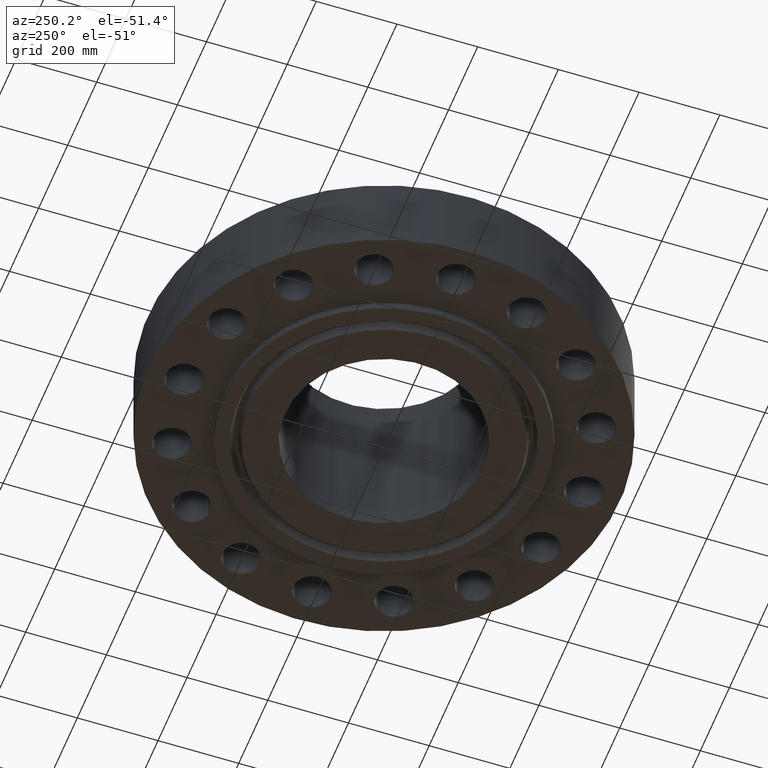
[diagram: clean part render]
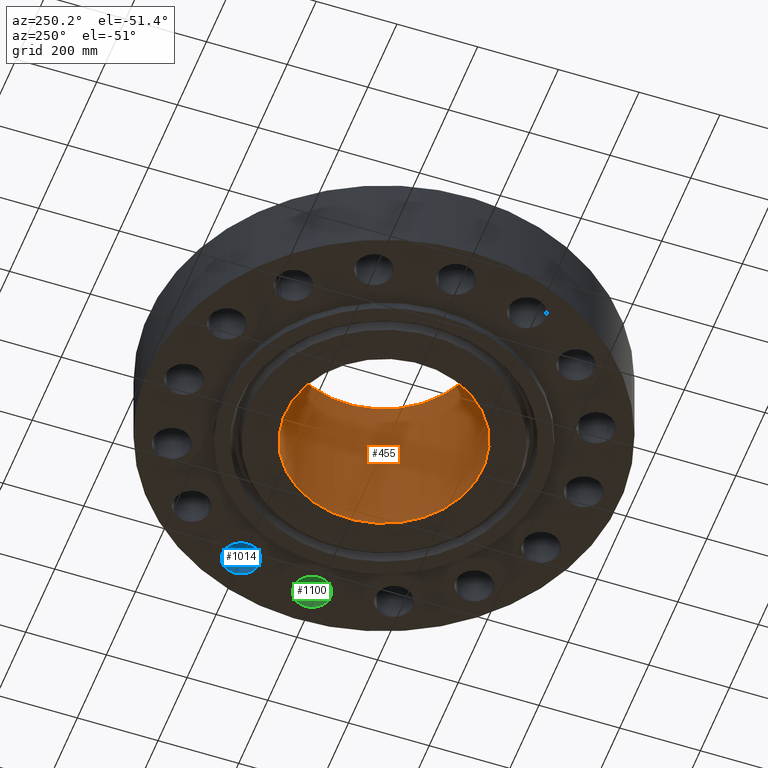
[diagram: same view with three faces highlighted in distinct colors, each labeled with its STEP entity id]
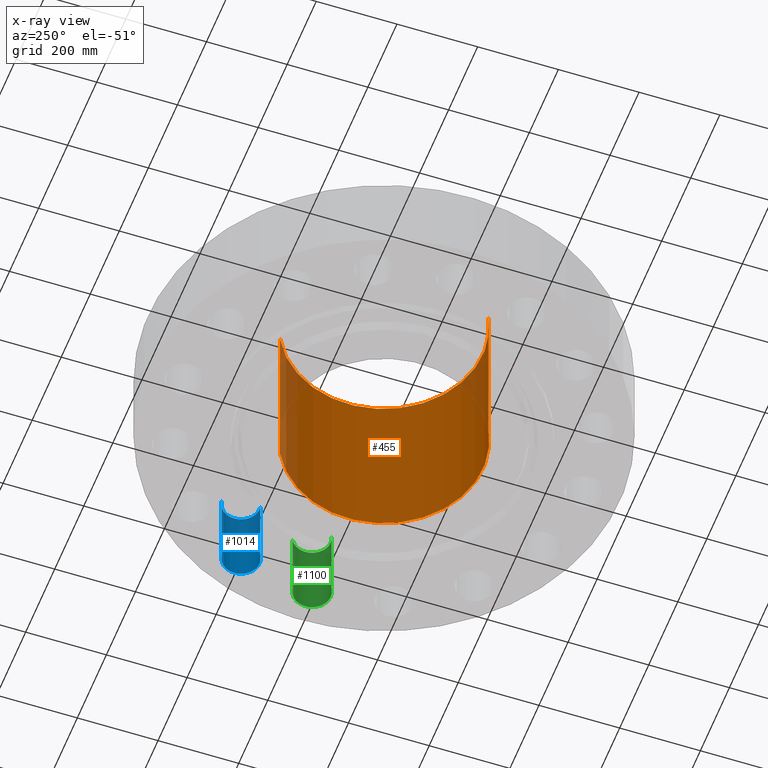
[diagram: x-ray of the same camera — body ghosted, the three highlighted faces saturated]
A machine part, auxiliary view with three faces highlighted in distinct colors.
The next image is the same camera in x-ray (body ghosted, the three faces saturated) — at least one of them is partly hidden behind the body in this view.
Their STEP definitions:

[orange] entity #455 — the highlighted cylindrical surface (partial cylindrical patch) has radius 245.262 mm, axis along (0, 0, -1).
#374=AXIS2_PLACEMENT_3D('Circle Axis2P3D',#372,#373,$) ;
#416=AXIS2_PLACEMENT_3D('Cylinder Axis2P3D',#413,#414,#415) ;
#446=AXIS2_PLACEMENT_3D('Circle Axis2P3D',#444,#445,$) ;
#367=CARTESIAN_POINT('Vertex',(-4.62933300078,-8.47393721765,16.0000000001)) ;
#369=CARTESIAN_POINT('Vertex',(4.62933300078,8.47393721765,16.0000000001)) ;
#372=CARTESIAN_POINT('Axis2P3D Location',(0.,0.,16.0000000001)) ;
#413=CARTESIAN_POINT('Axis2P3D Location',(0.,0.,7.59350000003)) ;
#418=CARTESIAN_POINT('Line Origine',(-4.62933300078,-8.47393721765,7.59350000003)) ;
#422=CARTESIAN_POINT('Vertex',(-4.62933300078,-8.47393721765,-0.813000000003)) ;
#429=CARTESIAN_POINT('Vertex',(4.62933300078,8.47393721765,-0.813000000003)) ;
#432=CARTESIAN_POINT('Line Origine',(4.62933300078,8.47393721765,7.59350000003)) ;
#444=CARTESIAN_POINT('Axis2P3D Location',(0.,0.,-0.813000000003)) ;
#373=DIRECTION('Axis2P3D Direction',(0.,0.,-0.0393700787402)) ;
#414=DIRECTION('Axis2P3D Direction',(0.,0.,-0.0393700787402)) ;
#415=DIRECTION('Axis2P3D XDirection',(0.0188750212049,0.0345504945626,0.)) ;
#419=DIRECTION('Vector Direction',(0.,0.,-0.0393700787402)) ;
#433=DIRECTION('Vector Direction',(0.,0.,-0.0393700787402)) ;
#445=DIRECTION('Axis2P3D Direction',(0.,0.,-0.0393700787402)) ;
#420=VECTOR('Line Direction',#419,0.0393700787402) ;
#434=VECTOR('Line Direction',#433,0.0393700787402) ;
#450=ORIENTED_EDGE('',*,*,#376,.F.) ;
#451=ORIENTED_EDGE('',*,*,#436,.T.) ;
#452=ORIENTED_EDGE('',*,*,#448,.T.) ;
#453=ORIENTED_EDGE('',*,*,#424,.F.) ;
#455=ADVANCED_FACE('PartBody',(#454),#417,.F.) ;
#375=CIRCLE('generated circle',#374,9.65600000004) ;
#447=CIRCLE('generated circle',#446,9.65600000004) ;
#417=CYLINDRICAL_SURFACE('generated cylinder',#416,9.65600000004) ;
#376=EDGE_CURVE('',#370,#368,#375,.T.) ;
#424=EDGE_CURVE('',#368,#423,#421,.T.) ;
#436=EDGE_CURVE('',#370,#430,#435,.T.) ;
#448=EDGE_CURVE('',#430,#423,#447,.T.) ;
#449=EDGE_LOOP('',(#450,#451,#452,#453)) ;
#454=FACE_OUTER_BOUND('',#449,.T.) ;
#421=LINE('Line',#418,#420) ;
#435=LINE('Line',#432,#434) ;
#368=VERTEX_POINT('',#367) ;
#370=VERTEX_POINT('',#369) ;
#423=VERTEX_POINT('',#422) ;
#430=VERTEX_POINT('',#429) ;

[blue] entity #1014 — the highlighted cylindrical surface (edge-blend (fillet) strip) has radius 46.101 mm, axis along (0, -0, -1).
#622=AXIS2_PLACEMENT_3D('Circle Axis2P3D',#620,#621,$) ;
#987=AXIS2_PLACEMENT_3D('Cylinder Axis2P3D',#984,#985,#986) ;
#1005=AXIS2_PLACEMENT_3D('Circle Axis2P3D',#1003,#1004,$) ;
#620=CARTESIAN_POINT('Axis2P3D Location',(18.015650884,7.46232693115,0.)) ;
#624=CARTESIAN_POINT('Vertex',(18.210028555,9.26688846267,0.)) ;
#626=CARTESIAN_POINT('Vertex',(17.8212732131,5.65776539962,0.)) ;
#984=CARTESIAN_POINT('Axis2P3D Location',(18.015650884,7.46232693115,7.99606299216)) ;
#989=CARTESIAN_POINT('Line Origine',(18.210028555,9.26688846267,4.00000000002)) ;
#993=CARTESIAN_POINT('Vertex',(18.210028555,9.26688846267,8.00000000003)) ;
#996=CARTESIAN_POINT('Line Origine',(17.8212732131,5.65776539962,4.00000000002)) ;
#1000=CARTESIAN_POINT('Vertex',(17.8212732131,5.65776539962,8.00000000003)) ;
#1003=CARTESIAN_POINT('Axis2P3D Location',(18.015650884,7.46232693115,8.00000000003)) ;
#621=DIRECTION('Axis2P3D Direction',(0.,0.,-0.0393700787402)) ;
#985=DIRECTION('Axis2P3D Direction',(0.,-0.,-0.0393700787402)) ;
#986=DIRECTION('Axis2P3D XDirection',(-0.00421634391778,-0.0391436526652,0.)) ;
#990=DIRECTION('Vector Direction',(0.,0.,-0.0393700787402)) ;
#997=DIRECTION('Vector Direction',(0.,0.,-0.0393700787402)) ;
#1004=DIRECTION('Axis2P3D Direction',(0.,-0.,-0.0393700787402)) ;
#991=VECTOR('Line Direction',#990,0.0393700787402) ;
#998=VECTOR('Line Direction',#997,0.0393700787402) ;
#1009=ORIENTED_EDGE('',*,*,#995,.F.) ;
#1010=ORIENTED_EDGE('',*,*,#628,.T.) ;
#1011=ORIENTED_EDGE('',*,*,#1002,.T.) ;
#1012=ORIENTED_EDGE('',*,*,#1007,.F.) ;
#1014=ADVANCED_FACE('PartBody',(#1013),#988,.F.) ;
#623=CIRCLE('generated circle',#622,1.81500000001) ;
#1006=CIRCLE('generated circle',#1005,1.81500000001) ;
#988=CYLINDRICAL_SURFACE('generated cylinder',#987,1.81500000001) ;
#628=EDGE_CURVE('',#625,#627,#623,.T.) ;
#995=EDGE_CURVE('',#625,#994,#992,.F.) ;
#1002=EDGE_CURVE('',#627,#1001,#999,.F.) ;
#1007=EDGE_CURVE('',#994,#1001,#1006,.T.) ;
#1008=EDGE_LOOP('',(#1009,#1010,#1011,#1012)) ;
#1013=FACE_OUTER_BOUND('',#1008,.T.) ;
#992=LINE('Line',#989,#991) ;
#999=LINE('Line',#996,#998) ;
#625=VERTEX_POINT('',#624) ;
#627=VERTEX_POINT('',#626) ;
#994=VERTEX_POINT('',#993) ;
#1001=VERTEX_POINT('',#1000) ;

[green] entity #1100 — the highlighted cylindrical surface (edge-blend (fillet) strip) has radius 46.101 mm, axis along (0, -0, -1).
#640=AXIS2_PLACEMENT_3D('Circle Axis2P3D',#638,#639,$) ;
#1073=AXIS2_PLACEMENT_3D('Cylinder Axis2P3D',#1070,#1071,#1072) ;
#1091=AXIS2_PLACEMENT_3D('Circle Axis2P3D',#1089,#1090,$) ;
#638=CARTESIAN_POINT('Axis2P3D Location',(19.5000000001,0.,0.)) ;
#642=CARTESIAN_POINT('Vertex',(20.3701573526,1.59281234984,0.)) ;
#644=CARTESIAN_POINT('Vertex',(18.6298426475,-1.59281234984,0.)) ;
#1070=CARTESIAN_POINT('Axis2P3D Location',(19.5000000001,1.19403062917E-015,7.99606299216)) ;
#1075=CARTESIAN_POINT('Line Origine',(20.3701573526,1.59281234984,4.00000000002)) ;
#1079=CARTESIAN_POINT('Vertex',(20.3701573526,1.59281234984,8.00000000003)) ;
#1082=CARTESIAN_POINT('Line Origine',(18.6298426475,-1.59281234984,4.00000000002)) ;
#1086=CARTESIAN_POINT('Vertex',(18.6298426475,-1.59281234984,8.00000000003)) ;
#1089=CARTESIAN_POINT('Axis2P3D Location',(19.5000000001,1.19403062917E-015,8.00000000003)) ;
#639=DIRECTION('Axis2P3D Direction',(0.,0.,-0.0393700787402)) ;
#1071=DIRECTION('Axis2P3D Direction',(0.,-0.,-0.0393700787402)) ;
#1072=DIRECTION('Axis2P3D XDirection',(-0.0188750212049,-0.0345504945626,0.)) ;
#1076=DIRECTION('Vector Direction',(0.,0.,-0.0393700787402)) ;
#1083=DIRECTION('Vector Direction',(0.,0.,-0.0393700787402)) ;
#1090=DIRECTION('Axis2P3D Direction',(0.,-0.,-0.0393700787402)) ;
#1077=VECTOR('Line Direction',#1076,0.0393700787402) ;
#1084=VECTOR('Line Direction',#1083,0.0393700787402) ;
#1095=ORIENTED_EDGE('',*,*,#1081,.F.) ;
#1096=ORIENTED_EDGE('',*,*,#646,.T.) ;
#1097=ORIENTED_EDGE('',*,*,#1088,.T.) ;
#1098=ORIENTED_EDGE('',*,*,#1093,.F.) ;
#1100=ADVANCED_FACE('PartBody',(#1099),#1074,.F.) ;
#641=CIRCLE('generated circle',#640,1.81500000001) ;
#1092=CIRCLE('generated circle',#1091,1.81500000001) ;
#1074=CYLINDRICAL_SURFACE('generated cylinder',#1073,1.81500000001) ;
#646=EDGE_CURVE('',#643,#645,#641,.T.) ;
#1081=EDGE_CURVE('',#643,#1080,#1078,.F.) ;
#1088=EDGE_CURVE('',#645,#1087,#1085,.F.) ;
#1093=EDGE_CURVE('',#1080,#1087,#1092,.T.) ;
#1094=EDGE_LOOP('',(#1095,#1096,#1097,#1098)) ;
#1099=FACE_OUTER_BOUND('',#1094,.T.) ;
#1078=LINE('Line',#1075,#1077) ;
#1085=LINE('Line',#1082,#1084) ;
#643=VERTEX_POINT('',#642) ;
#645=VERTEX_POINT('',#644) ;
#1080=VERTEX_POINT('',#1079) ;
#1087=VERTEX_POINT('',#1086) ;